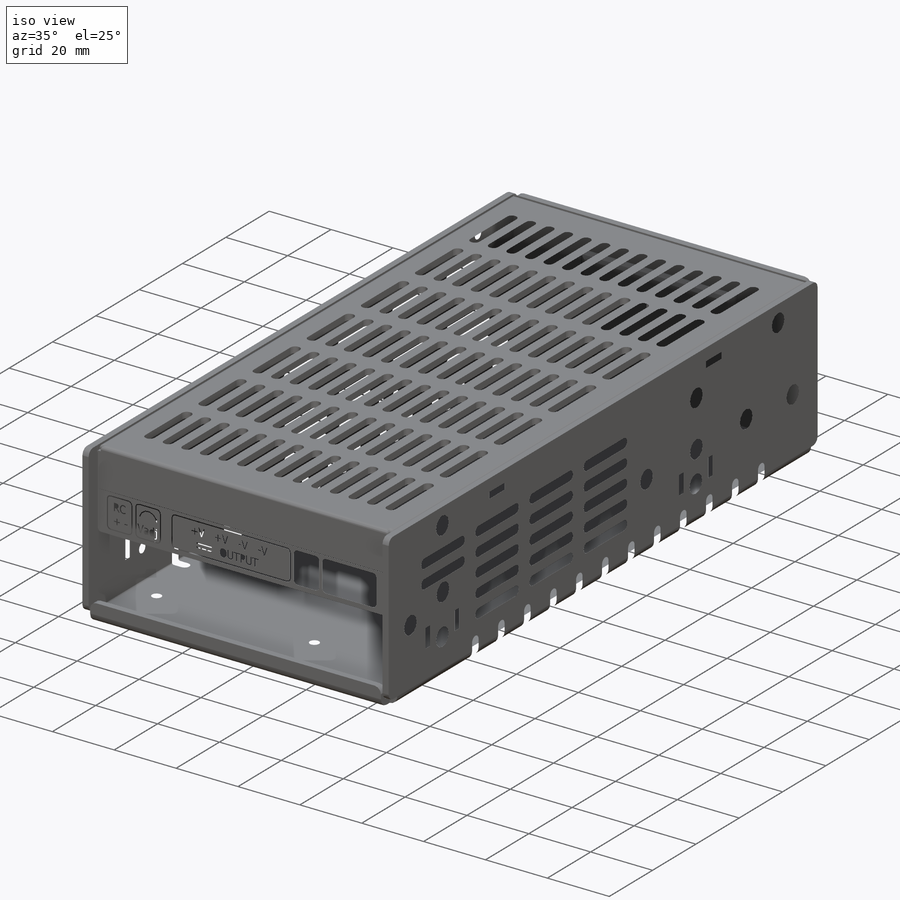
[diagram: iso view]
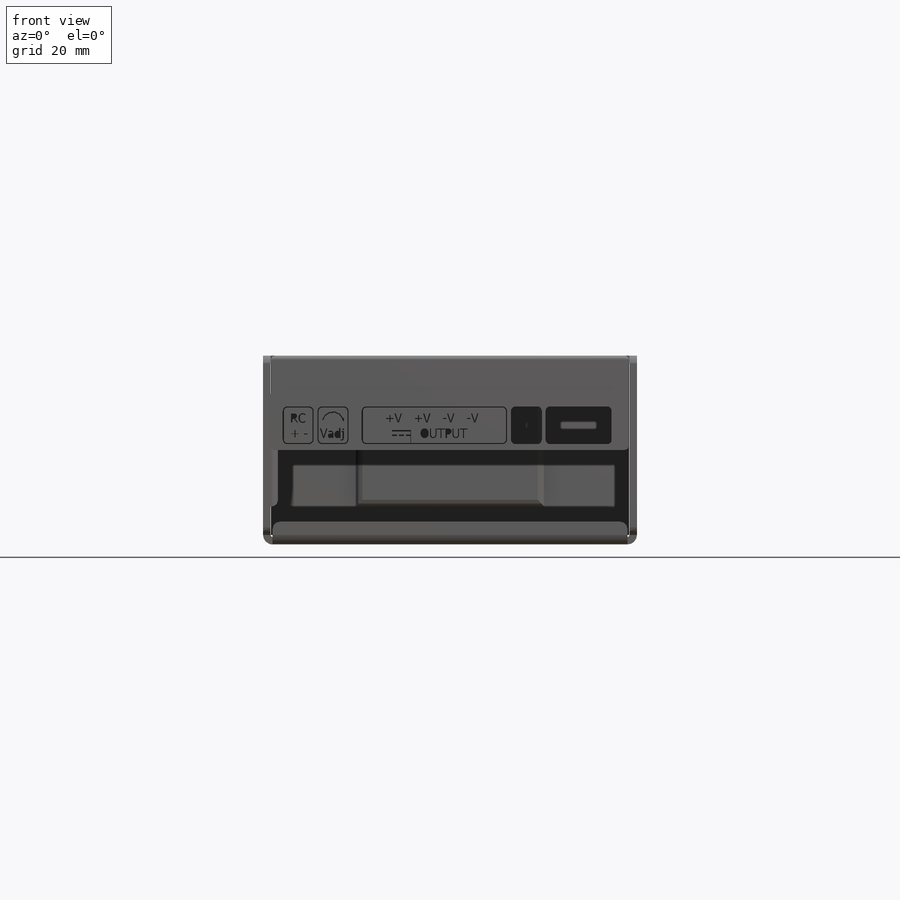
[diagram: front view]
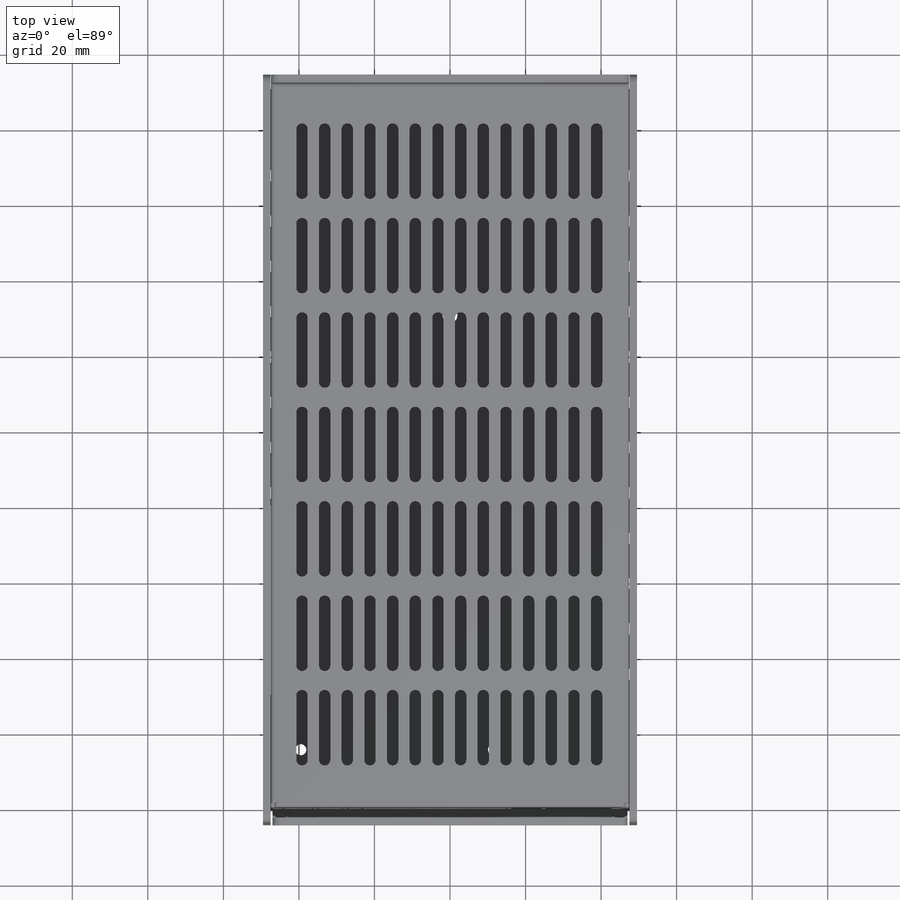
[diagram: top view]
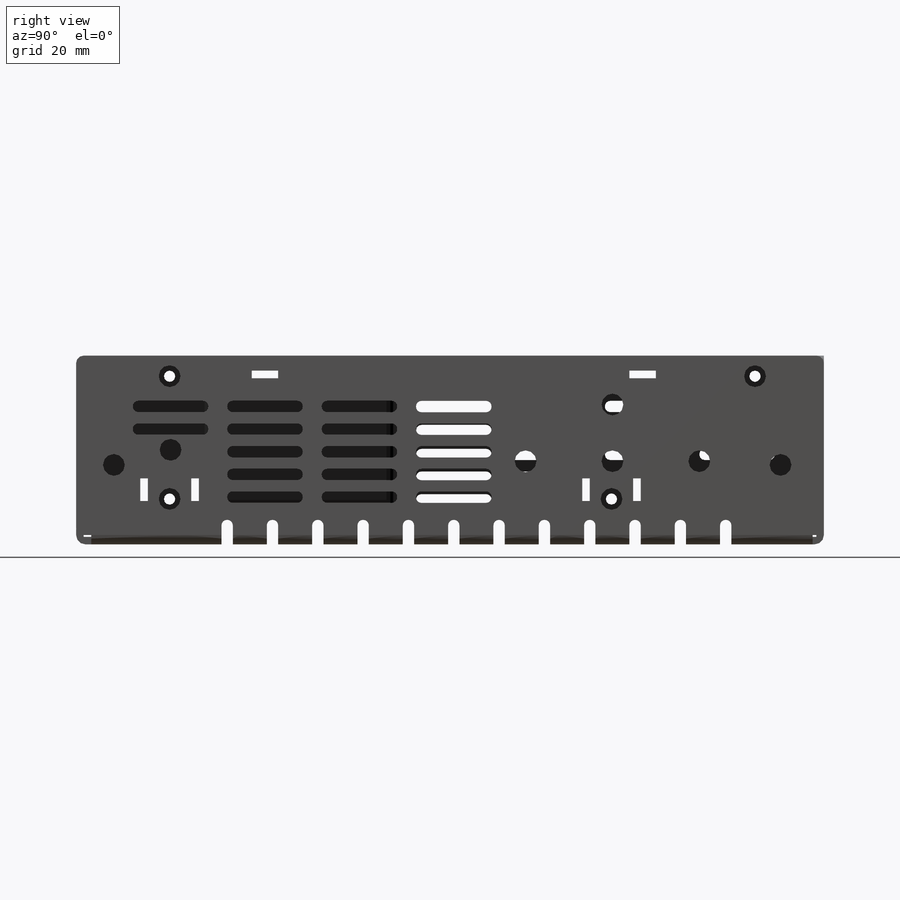
[diagram: right view]
SOLIDWORKS PART (.sldprt)
format: sldprt  version: not decoded by parser v0  size: 3,043,840 bytes
history: native  units: mm
features: sketch x18, cut_extrude x11, extrude x7, fillet x5, chamfer x2, material x1, shell x1 (+12 scaffold rows collapsed)
feature tree (57):
  scaffold x12  (default folders/planes/origin — collapsed)
  material  "PW110:Mi:0:12:C1:0:1:2:Re:26:"
  sketch  "Sketch1"  dims[D3=2.5mm D1=49.5mm D2=50.0mm]
  extrude  "Base-Extrude"  Depth=194mm
  sketch  "Sketch2"  dims[D1=26.0mm D2=46.0mm D3=12.0mm D4=32.0mm]
  cut_extrude  "Cut-Extrude1"  Depth=2mm
  sketch  "Sketch3"  dims[D1=46.0mm D2=26.0mm D3=12.0mm D4=23.0mm]
  cut_extrude  "Cut-Extrude2"  Depth=2mm
  shell  "Shell1"  Thickness=2mm
  fillet  "Fillet2"  Radius=1.8mm
  sketch  "Sketch4"  dims[D1=2.0mm D2=2.1mm D3=0.1mm D4=0.1mm D5=0.1mm D6=0.1mm]
  cut_extrude  "Cut-Extrude3"  Depth=2mm
  sketch  "Sketch5"  dims[D1=1.0mm D2=0.1mm D3=0.1mm]
  extrude  "Boss-Extrude1"  Depth=23mm
  fillet  "Fillet3"  Radius=1mm
  sketch  "Sketch6"
  extrude  "Boss-Extrude2"  Depth=4mm
  sketch  "Sketch7"  dims[D1=2.0mm]
  extrude  "Boss-Extrude3"  Depth=4mm
  sketch  "Sketch8"  dims[D1=2.0mm D2=2.0mm D3=0.1mm]
  cut_extrude  "Cut-Extrude4"  Depth=2mm
  sketch  "Sketch9"
  cut_extrude  "Cut-Extrude5"  Depth=3mm
  fillet  "Fillet6"  Radius=2.5mm
  sketch  "Sketch10"  dims[D1=1.0mm D2=1.0mm]
  cut_extrude  "Cut-Extrude7"  Depth=1.5mm
  fillet  "Fillet8"  Radius=1mm
  fillet  "Fillet9"  Radius=2mm
  sketch  "Sketch11"  dims[D5=1.45mm D1=20.0mm D2=3.0mm D3=8.8mm D4=11.0mm D6=90.0deg]
  cut_extrude  "Cut-Extrude8"  Depth=2mm
  sketch  "Sketch12"  dims[c1.D5=1.45mm c1.D11=1.45mm c1.D14=3.0mm c1.D17=~2.88573mm c1.D18=3.0mm c1.D19=3.0mm c1.D20=3.0mm c1.D1=20.0mm c1.D2=3.0mm c1.D3=15.0mm c1.D4=12.0mm c1.D6=90.0deg c1.D7=20.0mm c1.D8=3.0mm c1.D9=27.0mm c1.D10=40.0mm c1.D12=90.0deg c1.D13=25.0mm c1.D15=25.0mm c1.D16=10.0mm c2.D17=21.0mm c2.D20=22.0mm c2.D21=33.0mm]
  cut_extrude  "Cut-Extrude9"  Depth=2mm
  sketch  "Sketch13"  dims[c1.D5=1.45mm c1.D9=1.45mm c1.D12=1.45mm c1.D16=1.45mm c1.D22=3.0mm c1.D1=20.0mm c1.D2=3.0mm c1.D3=86.0mm c1.D4=12.0mm c1.D6=90.0deg c1.D7=3.0mm c1.D8=3.0mm c1.D10=90.0deg c1.D11=15.0mm c1.D13=6.5mm c1.D14=35.0mm c1.D15=3.0mm c1.D17=6.0mm c1.D18=2.0mm c1.D19=17.0mm c1.D20=12.0mm c1.D21=12.5mm c1.D23=5.75mm c2.D13=7.0mm c2.D14=2.0mm c2.D15=7.0mm c2.D16=4.5mm]
  cut_extrude  "Cut-Extrude10"  Depth=2mm
  sketch  "Sketch14"  dims[c1.D5=1.45mm c1.D10=3.0mm c1.D11=3.0mm c1.D12=3.0mm c1.D13=3.0mm c1.D14=3.0mm c1.D1=3.0mm c1.D2=4.5mm c1.D3=2.0mm c1.D4=38.5mm c1.D6=6.0mm c1.D7=2.0mm c1.D8=17.0mm c1.D9=11.5mm c2.D11=5.75mm c2.D12=12.0mm c2.D14=5.5mm c2.D15=7.0mm c2.D16=2.0mm c2.D17=46.5mm c2.D18=4.0mm]
  cut_extrude  "Cut-Extrude11"  Depth=99mm
  sketch  "Sketch15"  dims[c1.D3=1.45mm c1.D6=1.45mm c1.D7=3.0mm c1.D10=3.0mm c1.D13=3.0mm c1.D16=3.0mm c1.D18=4.0mm c1.D20=4.0mm c1.D1=6.5mm c1.D2=2.95mm c2.D1=6.5mm c2.D2=3.0mm c2.D3=38.5mm c2.D4=6.5mm c2.D5=3.0mm c2.D8=9.5mm c2.D9=9.5mm c2.D11=9.5mm c2.D12=9.5mm c2.D14=20.0mm c2.D15=10.0mm c2.D17=51.0mm c2.D19=135.0mm c2.D20=50.0mm]
  cut_extrude  "Cut-Extrude12"  Depth=2mm
  chamfer  "Chamfer1"  Distance=0.8mm Angle=60deg
  chamfer  "Chamfer2"  Distance=1.3865mm Angle=30deg
  sketch  "Sketch16"  dims[D1=2.0mm D2=12.0mm D3=0.5mm D4=0.5mm]
  extrude  "Boss-Extrude4"  Depth=0mm PW2_UID_val=0mm
  sketch  "Sketch17"  dims[D5=1.2mm D14=1.2mm D39=1.5mm D42=1.2mm D51=4.0mm D1=10.0mm D2=1.0mm D3=2.5mm D4=2.5mm D6=8.2mm D7=1.0mm D8=8.2mm D9=3.5mm D10=1.0mm D11=1.0mm D12=8.2mm D13=17.5mm D17=5.0mm D18=0.3mm D19=8.0mm D20=6.3mm D21=0.3mm D22=1.2mm D23=1.3mm D24=1.4mm D25=0.3mm D26=3.4mm D27=1.9mm D28=0.6mm D29=0.3mm D30=2.2mm D31=0.4mm D32=0.3mm D33=0.6mm D34=3.0mm D35=0.4mm D36=1.0mm D37=0.3mm D38=0.55mm D40=2.4mm D41=2.4mm D44=0.02mm D45=0.02mm D46=0.02mm D47=0.02mm D48=0.02mm D49=1.25mm D50=0.15mm D15=0.3mm D16=0.3mm D43=0.3mm D52=0.3mm]
  extrude  "Boss-Extrude5"  Depth=0mm PW2_UID_val=0mm
  sketch  "Sketch18"
  extrude  "Boss-Extrude6"  Depth=0mm PW2_UID_val=0mm
decode coverage: 41 of 44 modeling features carry decoded parameters
note: ~ marks probable driven/reference dimensions
note: suppression state not decoded; provenance and decode notes live in map.json
